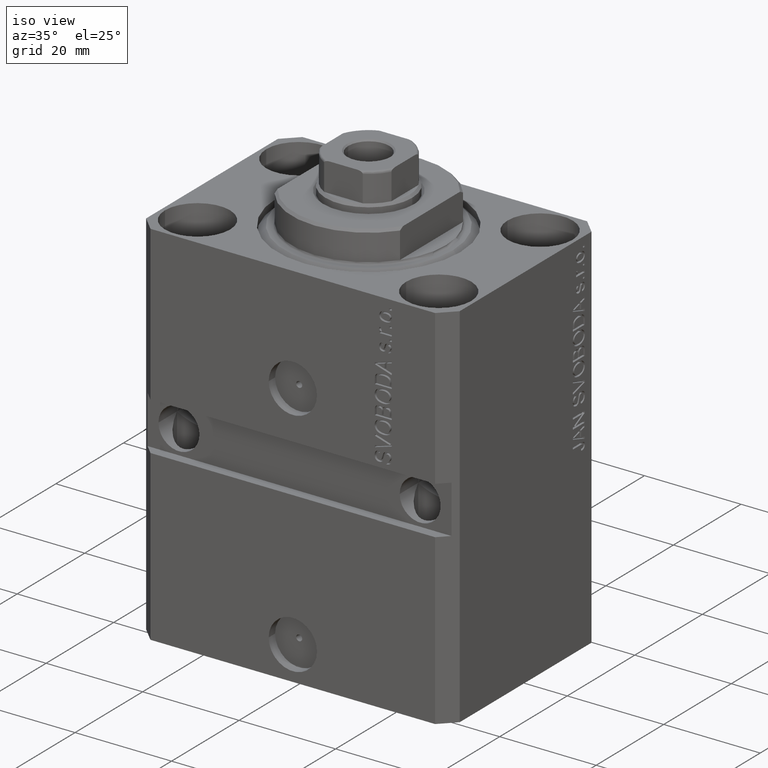
[diagram: clean part render]
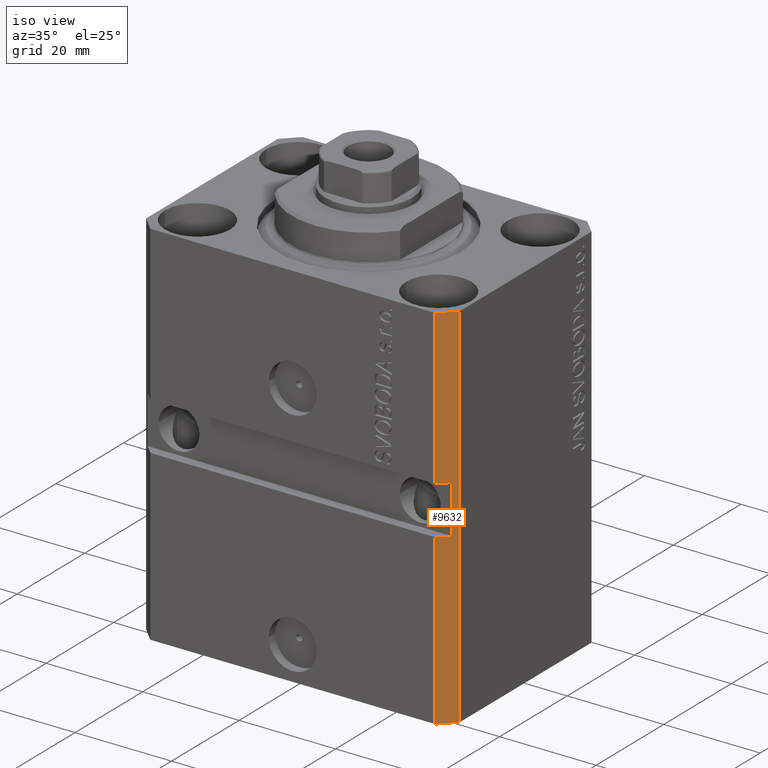
[diagram: same view with one face highlighted and labeled with its STEP entity id]
A machine part, iso view. The second image highlights one B-rep face of the part: STEP entity #9632.
In plain terms, the highlighted planar face has unit normal (0.7071, -0.7071, 0).
Its self-contained STEP definition (entity closure, byte-faithful):
#1304 = ORIENTED_EDGE ( 'NONE', *, *, #38002, .T. ) ;
#2157 = EDGE_CURVE ( 'NONE', #18696, #24844, #18219, .T. ) ;
#2554 = ORIENTED_EDGE ( 'NONE', *, *, #28646, .F. ) ;
#3952 = DIRECTION ( 'NONE',  ( 0.7071067811865466846, -0.7071067811865483499, 0.000000000000000000 ) ) ;
#4164 = LINE ( 'NONE', #18721, #39864 ) ;
#4994 = VECTOR ( 'NONE', #35847, 1000.000000000000000 ) ;
#5231 = CARTESIAN_POINT ( 'NONE',  ( 29.49999999999650413, -22.49999999999949196, -77.00000000000000000 ) ) ;
#5887 = CARTESIAN_POINT ( 'NONE',  ( 29.49999999999650413, -22.49999999999949196, -77.00000000000000000 ) ) ;
#6870 = CARTESIAN_POINT ( 'NONE',  ( 29.49999999999650413, -22.49999999999949196, 0.000000000000000000 ) ) ;
#7539 = ORIENTED_EDGE ( 'NONE', *, *, #36127, .F. ) ;
#7955 = CARTESIAN_POINT ( 'NONE',  ( 29.49999999999650058, -22.49999999999949551, -41.99999999999998579 ) ) ;
#8832 = DIRECTION ( 'NONE',  ( 0.7071067811865483499, 0.7071067811865466846, 0.000000000000000000 ) ) ;
#9330 = VERTEX_POINT ( 'NONE', #13848 ) ;
#9461 = DIRECTION ( 'NONE',  ( 0.000000000000000000, 0.000000000000000000, 1.000000000000000000 ) ) ;
#9632 = ADVANCED_FACE ( 'NONE', ( #18511 ), #33516, .T. ) ;
#10266 = AXIS2_PLACEMENT_3D ( 'NONE', #40670, #3952, #22803 ) ;
#11305 = DIRECTION ( 'NONE',  ( 0.000000000000000000, 0.000000000000000000, 1.000000000000000000 ) ) ;
#13071 = EDGE_CURVE ( 'NONE', #24844, #45674, #14312, .T. ) ;
#13848 = CARTESIAN_POINT ( 'NONE',  ( 31.49999999999650413, -20.49999999999949196, -41.99999999999998579 ) ) ;
#14050 = ORIENTED_EDGE ( 'NONE', *, *, #18374, .T. ) ;
#14312 = LINE ( 'NONE', #26186, #30912 ) ;
#15245 = DIRECTION ( 'NONE',  ( 0.000000000000000000, 0.000000000000000000, 1.000000000000000000 ) ) ;
#15258 = VECTOR ( 'NONE', #18232, 1000.000000000000000 ) ;
#15354 = LINE ( 'NONE', #33209, #26370 ) ;
#16421 = VERTEX_POINT ( 'NONE', #30348 ) ;
#17914 = EDGE_LOOP ( 'NONE', ( #43079, #7539, #40265, #14050, #2554, #46331, #28760, #1304 ) ) ;
#18219 = LINE ( 'NONE', #25818, #4994 ) ;
#18232 = DIRECTION ( 'NONE',  ( 0.7071067811865483499, 0.7071067811865466846, 7.548521435980509068E-17 ) ) ;
#18374 = EDGE_CURVE ( 'NONE', #32920, #22223, #15354, .T. ) ;
#18490 = DIRECTION ( 'NONE',  ( 0.000000000000000000, 0.000000000000000000, -1.000000000000000000 ) ) ;
#18511 = FACE_OUTER_BOUND ( 'NONE', #17914, .T. ) ;
#18696 = VERTEX_POINT ( 'NONE', #42964 ) ;
#18721 = CARTESIAN_POINT ( 'NONE',  ( 31.49999999999651124, -20.49999999999949551, -77.00000000000000000 ) ) ;
#19791 = DIRECTION ( 'NONE',  ( 0.7071067811865483499, 0.7071067811865466846, 0.000000000000000000 ) ) ;
#20891 = LINE ( 'NONE', #5887, #26798 ) ;
#22223 = VERTEX_POINT ( 'NONE', #38007 ) ;
#22803 = DIRECTION ( 'NONE',  ( 0.7071067811865483499, 0.7071067811865466846, 0.000000000000000000 ) ) ;
#23829 = CARTESIAN_POINT ( 'NONE',  ( 29.49999999999650413, -22.49999999999949196, 0.000000000000000000 ) ) ;
#24310 = LINE ( 'NONE', #23829, #39644 ) ;
#24844 = VERTEX_POINT ( 'NONE', #38011 ) ;
#25818 = CARTESIAN_POINT ( 'NONE',  ( 29.49999999999650768, -22.49999999999948841, -32.00000000000000711 ) ) ;
#26186 = CARTESIAN_POINT ( 'NONE',  ( 29.49999999999650413, -22.49999999999949196, -77.00000000000000000 ) ) ;
#26370 = VECTOR ( 'NONE', #11305, 1000.000000000000000 ) ;
#26798 = VECTOR ( 'NONE', #9461, 1000.000000000000000 ) ;
#27443 = EDGE_CURVE ( 'NONE', #16421, #9330, #40147, .T. ) ;
#28097 = LINE ( 'NONE', #5231, #36823 ) ;
#28646 = EDGE_CURVE ( 'NONE', #45674, #22223, #24310, .T. ) ;
#28760 = ORIENTED_EDGE ( 'NONE', *, *, #2157, .F. ) ;
#30348 = CARTESIAN_POINT ( 'NONE',  ( 29.49999999999650058, -22.49999999999949196, -41.99999999999998579 ) ) ;
#30912 = VECTOR ( 'NONE', #15245, 1000.000000000000000 ) ;
#32920 = VERTEX_POINT ( 'NONE', #38572 ) ;
#33209 = CARTESIAN_POINT ( 'NONE',  ( 32.49999999999651124, -19.49999999999949196, -77.00000000000000000 ) ) ;
#33516 = PLANE ( 'NONE',  #10266 ) ;
#34789 = VERTEX_POINT ( 'NONE', #40346 ) ;
#35847 = DIRECTION ( 'NONE',  ( -0.7071067811865483499, -0.7071067811865466846, 7.548521435980509068E-17 ) ) ;
#36127 = EDGE_CURVE ( 'NONE', #34789, #16421, #20891, .T. ) ;
#36823 = VECTOR ( 'NONE', #19791, 1000.000000000000000 ) ;
#37914 = EDGE_CURVE ( 'NONE', #34789, #32920, #28097, .T. ) ;
#38002 = EDGE_CURVE ( 'NONE', #18696, #9330, #4164, .T. ) ;
#38007 = CARTESIAN_POINT ( 'NONE',  ( 32.49999999999651124, -19.49999999999949196, 0.000000000000000000 ) ) ;
#38011 = CARTESIAN_POINT ( 'NONE',  ( 29.49999999999650413, -22.49999999999949196, -32.00000000000000711 ) ) ;
#38572 = CARTESIAN_POINT ( 'NONE',  ( 32.49999999999651124, -19.49999999999949196, -77.00000000000000000 ) ) ;
#39644 = VECTOR ( 'NONE', #8832, 1000.000000000000000 ) ;
#39864 = VECTOR ( 'NONE', #18490, 1000.000000000000000 ) ;
#40147 = LINE ( 'NONE', #7955, #15258 ) ;
#40265 = ORIENTED_EDGE ( 'NONE', *, *, #37914, .T. ) ;
#40346 = CARTESIAN_POINT ( 'NONE',  ( 29.49999999999650413, -22.49999999999949196, -77.00000000000000000 ) ) ;
#40670 = CARTESIAN_POINT ( 'NONE',  ( 29.49999999999650413, -22.49999999999949196, -77.00000000000000000 ) ) ;
#42964 = CARTESIAN_POINT ( 'NONE',  ( 31.49999999999651124, -20.49999999999949196, -32.00000000000000711 ) ) ;
#43079 = ORIENTED_EDGE ( 'NONE', *, *, #27443, .F. ) ;
#45674 = VERTEX_POINT ( 'NONE', #6870 ) ;
#46331 = ORIENTED_EDGE ( 'NONE', *, *, #13071, .F. ) ;